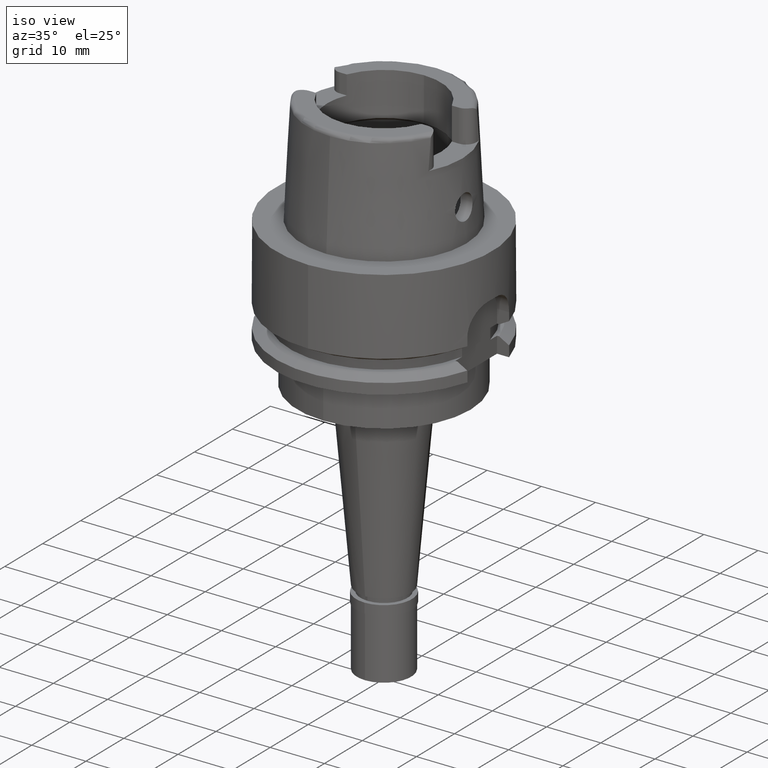
[diagram: clean part render]
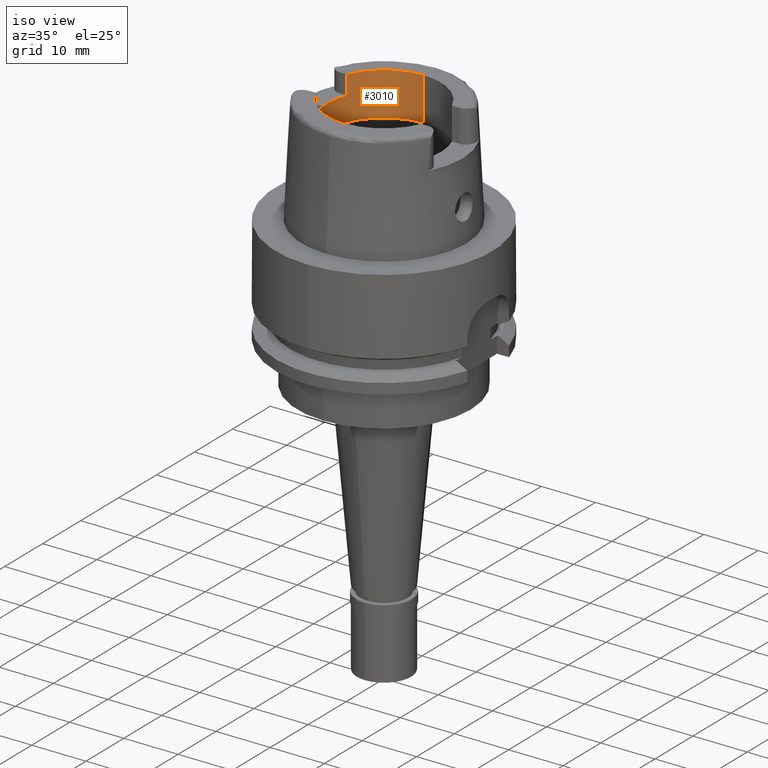
[diagram: same view with one face highlighted and labeled with its STEP entity id]
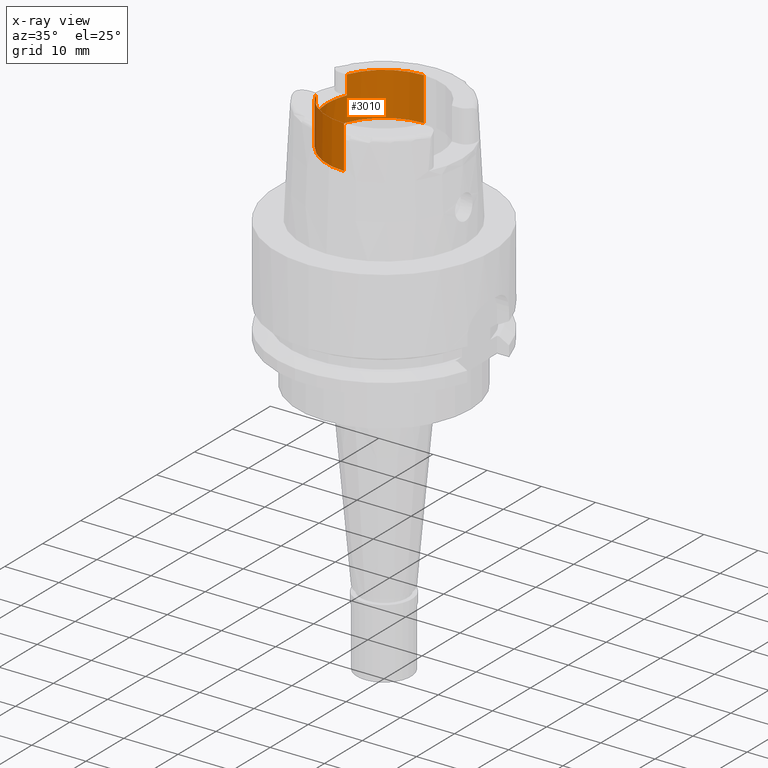
[diagram: x-ray of the same camera — body ghosted, the highlighted face saturated]
A machine part, iso view. The second image highlights one B-rep face of the part: STEP entity #3010.
The next image is the same camera in x-ray: the body ghosted, the highlighted face saturated — about 0% of this face is hidden behind the body in this view.
In plain terms, the highlighted cylindrical surface (partial cylindrical patch) has radius 10.5 mm, axis along (0, 0, -1).
Its self-contained STEP definition (entity closure, byte-faithful):
#76 = VECTOR ( 'NONE', #3499, 1000.000000000000000 ) ;
#140 = CARTESIAN_POINT ( 'NONE',  ( 0.0000000000000000000, 10.50000000000000000, 20.00000000000000000 ) ) ;
#279 = CARTESIAN_POINT ( 'NONE',  ( -9.697905701747998819, -4.025000000000000355, 16.50000000000000000 ) ) ;
#307 = EDGE_CURVE ( 'NONE', #4140, #2690, #2806, .T. ) ;
#336 = CARTESIAN_POINT ( 'NONE',  ( 0.0000000000000000000, 1.525481285357999688E-14, 16.50000000000000000 ) ) ;
#487 = ORIENTED_EDGE ( 'NONE', *, *, #643, .T. ) ;
#537 = VECTOR ( 'NONE', #1984, 1000.000000000000000 ) ;
#547 = VECTOR ( 'NONE', #4834, 1000.000000000000000 ) ;
#555 = CIRCLE ( 'NONE', #2101, 10.49999999999999822 ) ;
#620 = CARTESIAN_POINT ( 'NONE',  ( 0.0000000000000000000, -10.50000000000000000, 20.00000000000000000 ) ) ;
#643 = EDGE_CURVE ( 'NONE', #976, #3595, #3863, .T. ) ;
#664 = DIRECTION ( 'NONE',  ( 0.0000000000000000000, 0.0000000000000000000, 1.000000000000000000 ) ) ;
#976 = VERTEX_POINT ( 'NONE', #2493 ) ;
#1164 = CARTESIAN_POINT ( 'NONE',  ( 0.0000000000000000000, -10.50000000000000000, 11.99735026918999914 ) ) ;
#1176 = VERTEX_POINT ( 'NONE', #140 ) ;
#1251 = DIRECTION ( 'NONE',  ( 0.0000000000000000000, 0.0000000000000000000, -1.000000000000000000 ) ) ;
#1275 = ORIENTED_EDGE ( 'NONE', *, *, #307, .F. ) ;
#1372 = DIRECTION ( 'NONE',  ( 0.0000000000000000000, 0.0000000000000000000, 1.000000000000000000 ) ) ;
#1429 = CARTESIAN_POINT ( 'NONE',  ( 0.0000000000000000000, 1.525481285357999688E-14, 20.00000000000000000 ) ) ;
#1463 = CARTESIAN_POINT ( 'NONE',  ( -9.697905701747998819, 4.025000000000000355, 16.50000000000000000 ) ) ;
#1516 = CARTESIAN_POINT ( 'NONE',  ( -9.697905701747998819, -4.025000000000000355, 20.00000000000000000 ) ) ;
#1602 = DIRECTION ( 'NONE',  ( 0.0000000000000000000, -1.000000000000000000, 0.0000000000000000000 ) ) ;
#1629 = CYLINDRICAL_SURFACE ( 'NONE', #3965, 10.50000000000000000 ) ;
#1808 = VERTEX_POINT ( 'NONE', #3308 ) ;
#1832 = DIRECTION ( 'NONE',  ( 0.0000000000000000000, 0.0000000000000000000, 1.000000000000000000 ) ) ;
#1839 = EDGE_CURVE ( 'NONE', #1808, #3595, #5244, .T. ) ;
#1909 = AXIS2_PLACEMENT_3D ( 'NONE', #1429, #1372, #2637 ) ;
#1929 = AXIS2_PLACEMENT_3D ( 'NONE', #3510, #1832, #4305 ) ;
#1962 = VERTEX_POINT ( 'NONE', #2367 ) ;
#1979 = ORIENTED_EDGE ( 'NONE', *, *, #5125, .F. ) ;
#1984 = DIRECTION ( 'NONE',  ( 0.0000000000000000000, 4.506013014787999900E-14, 1.000000000000000000 ) ) ;
#2101 = AXIS2_PLACEMENT_3D ( 'NONE', #336, #664, #3607 ) ;
#2367 = CARTESIAN_POINT ( 'NONE',  ( 0.0000000000000000000, 10.50000000000000000, 11.99735026918999914 ) ) ;
#2391 = EDGE_CURVE ( 'NONE', #1962, #1176, #4374, .T. ) ;
#2493 = CARTESIAN_POINT ( 'NONE',  ( -9.697905701747998819, -4.025000000000000355, 20.00000000000000000 ) ) ;
#2637 = DIRECTION ( 'NONE',  ( -0.9236100668331782559, -0.3833333333332911153, 0.0000000000000000000 ) ) ;
#2690 = VERTEX_POINT ( 'NONE', #4502 ) ;
#2806 = LINE ( 'NONE', #1463, #4621 ) ;
#2830 = CARTESIAN_POINT ( 'NONE',  ( 0.0000000000000000000, 1.525481285357999688E-14, 24.56500000000000128 ) ) ;
#2898 = DIRECTION ( 'NONE',  ( 0.0000000000000000000, -1.000000000000000000, 0.0000000000000000000 ) ) ;
#2902 = EDGE_CURVE ( 'NONE', #4140, #5264, #555, .T. ) ;
#3010 = ADVANCED_FACE ( 'NONE', ( #4474 ), #1629, .F. ) ;
#3047 = ORIENTED_EDGE ( 'NONE', *, *, #3490, .T. ) ;
#3101 = DIRECTION ( 'NONE',  ( 0.0000000000000000000, 0.0000000000000000000, 1.000000000000000000 ) ) ;
#3131 = LINE ( 'NONE', #1516, #76 ) ;
#3308 = CARTESIAN_POINT ( 'NONE',  ( 0.0000000000000000000, -10.50000000000000000, 11.99735026918999914 ) ) ;
#3385 = CARTESIAN_POINT ( 'NONE',  ( 0.0000000000000000000, 1.363617650911000050E-14, 11.99735026918999914 ) ) ;
#3387 = AXIS2_PLACEMENT_3D ( 'NONE', #3385, #5224, #2898 ) ;
#3431 = EDGE_CURVE ( 'NONE', #1808, #1962, #4992, .T. ) ;
#3490 = EDGE_CURVE ( 'NONE', #1176, #2690, #5080, .T. ) ;
#3499 = DIRECTION ( 'NONE',  ( 0.0000000000000000000, 0.0000000000000000000, -1.000000000000000000 ) ) ;
#3510 = CARTESIAN_POINT ( 'NONE',  ( 0.0000000000000000000, 1.525481285357999688E-14, 20.00000000000000000 ) ) ;
#3562 = CARTESIAN_POINT ( 'NONE',  ( 0.0000000000000000000, 10.50000000000000000, 11.99735026918999914 ) ) ;
#3595 = VERTEX_POINT ( 'NONE', #620 ) ;
#3607 = DIRECTION ( 'NONE',  ( -0.9236100668331782559, 0.3833333333332911153, 0.0000000000000000000 ) ) ;
#3728 = EDGE_LOOP ( 'NONE', ( #1979, #487, #4228, #4402, #4793, #3047, #1275, #4890 ) ) ;
#3863 = CIRCLE ( 'NONE', #1909, 10.49999999999999822 ) ;
#3965 = AXIS2_PLACEMENT_3D ( 'NONE', #2830, #1251, #1602 ) ;
#4140 = VERTEX_POINT ( 'NONE', #5083 ) ;
#4228 = ORIENTED_EDGE ( 'NONE', *, *, #1839, .F. ) ;
#4305 = DIRECTION ( 'NONE',  ( 0.0000000000000000000, 1.000000000000000000, 0.0000000000000000000 ) ) ;
#4374 = LINE ( 'NONE', #3562, #537 ) ;
#4402 = ORIENTED_EDGE ( 'NONE', *, *, #3431, .T. ) ;
#4474 = FACE_OUTER_BOUND ( 'NONE', #3728, .T. ) ;
#4502 = CARTESIAN_POINT ( 'NONE',  ( -9.697905701747998819, 4.025000000000000355, 20.00000000000000000 ) ) ;
#4621 = VECTOR ( 'NONE', #3101, 1000.000000000000000 ) ;
#4793 = ORIENTED_EDGE ( 'NONE', *, *, #2391, .T. ) ;
#4834 = DIRECTION ( 'NONE',  ( 0.0000000000000000000, -4.506013014787999900E-14, 1.000000000000000000 ) ) ;
#4890 = ORIENTED_EDGE ( 'NONE', *, *, #2902, .T. ) ;
#4992 = CIRCLE ( 'NONE', #3387, 10.50000000000000000 ) ;
#5080 = CIRCLE ( 'NONE', #1929, 10.50000000000000000 ) ;
#5083 = CARTESIAN_POINT ( 'NONE',  ( -9.697905701747998819, 4.025000000000000355, 16.50000000000000000 ) ) ;
#5125 = EDGE_CURVE ( 'NONE', #976, #5264, #3131, .T. ) ;
#5224 = DIRECTION ( 'NONE',  ( 0.0000000000000000000, 0.0000000000000000000, -1.000000000000000000 ) ) ;
#5244 = LINE ( 'NONE', #1164, #547 ) ;
#5264 = VERTEX_POINT ( 'NONE', #279 ) ;